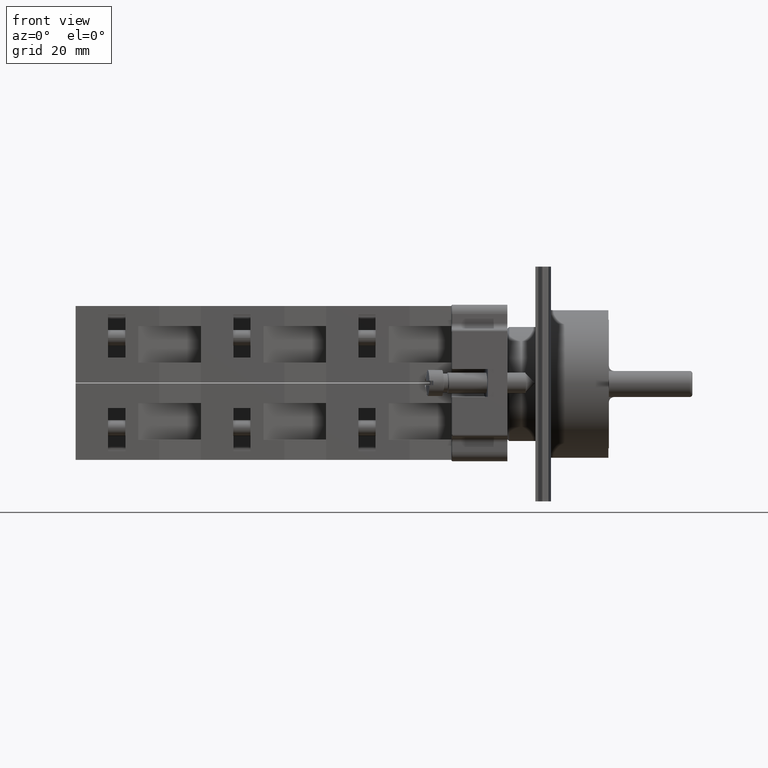
[diagram: clean part render]
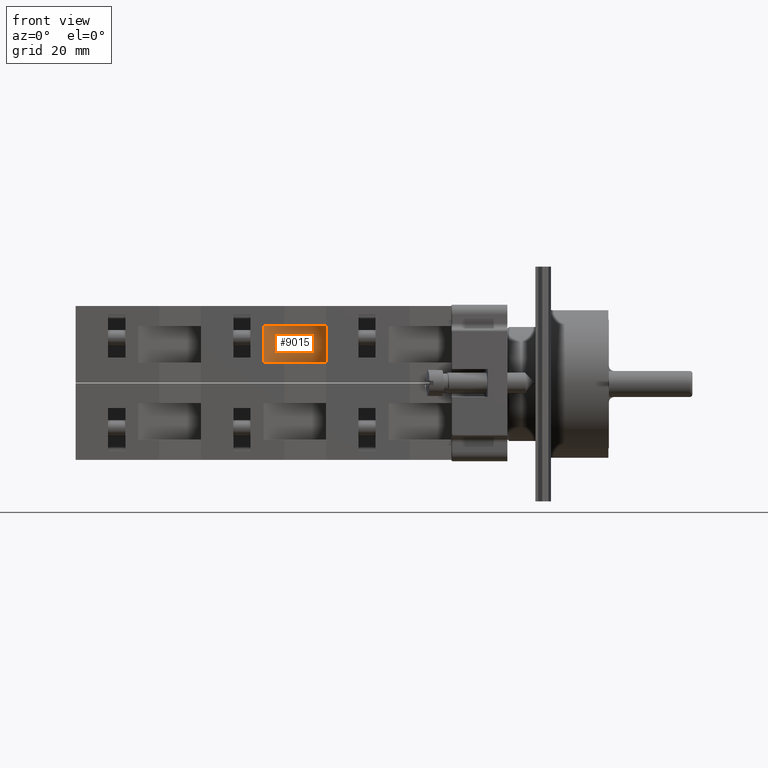
[diagram: same view with one face highlighted and labeled with its STEP entity id]
A machine part, front view. The second image highlights one B-rep face of the part: STEP entity #9015.
In plain terms, the highlighted face is a freeform B-spline surface patch.
Its self-contained STEP definition (entity closure, byte-faithful):
#8960=CARTESIAN_POINT('',(-44.936741828918457,11.797073323279610,10.850000000000000));
#8961=VERTEX_POINT('',#8960);
#8968=CARTESIAN_POINT('',(-35.936741828918450,-0.202926676720384,10.850000000000000));
#8969=VERTEX_POINT('',#8968);
#8970=CARTESIAN_POINT('',(-35.936741828918450,-0.202926676720384,10.850000000000000));
#8971=DIRECTION('',(-0.600000000000000,0.800000000000000,0.0));
#8972=VECTOR('',#8971,15.0);
#8973=LINE('',#8970,#8972);
#8974=EDGE_CURVE('',#8969,#8961,#8973,.T.);
#8985=CARTESIAN_POINT('',(-44.936741828918464,11.797073323279616,3.850000000000000));
#8986=CARTESIAN_POINT('',(-44.936741828918464,11.797073323279616,10.850000000000001));
#8987=CARTESIAN_POINT('',(-35.936741828918443,-0.202926676720384,3.850000000000000));
#8988=CARTESIAN_POINT('',(-35.936741828918450,-0.202926676720384,10.850000000000001));
#8989=B_SPLINE_SURFACE_WITH_KNOTS('',1,1,((#8985,#8987),(#8986,#8988)),.UNSPECIFIED.,.F.,.F.,.U.,(2,2),(2,2),(0.0,7.000000000000002),(0.0,15.000000000000012),.UNSPECIFIED.);
#8990=CARTESIAN_POINT('',(-44.936741828918457,11.797073323279610,3.850000000000001));
#8991=VERTEX_POINT('',#8990);
#8992=CARTESIAN_POINT('',(-35.936741828918450,-0.202926676720384,3.850000000000001));
#8993=VERTEX_POINT('',#8992);
#8994=CARTESIAN_POINT('',(-44.936741828918457,11.797073323279610,3.850000000000001));
#8995=DIRECTION('',(0.600000000000000,-0.800000000000000,0.0));
#8996=VECTOR('',#8995,15.0);
#8997=LINE('',#8994,#8996);
#8998=EDGE_CURVE('',#8991,#8993,#8997,.T.);
#8999=ORIENTED_EDGE('',*,*,#8998,.T.);
#9000=CARTESIAN_POINT('',(-35.936741828918450,-0.202926676720384,10.850000000000000));
#9001=DIRECTION('',(0.0,0.0,-1.0));
#9002=VECTOR('',#9001,6.999999999999999);
#9003=LINE('',#9000,#9002);
#9004=EDGE_CURVE('',#8969,#8993,#9003,.T.);
#9005=ORIENTED_EDGE('',*,*,#9004,.F.);
#9006=ORIENTED_EDGE('',*,*,#8974,.T.);
#9007=CARTESIAN_POINT('',(-44.936741828918457,11.797073323279610,3.850000000000001));
#9008=DIRECTION('',(0.0,0.0,1.0));
#9009=VECTOR('',#9008,6.999999999999999);
#9010=LINE('',#9007,#9009);
#9011=EDGE_CURVE('',#8991,#8961,#9010,.T.);
#9012=ORIENTED_EDGE('',*,*,#9011,.F.);
#9013=EDGE_LOOP('',(#8999,#9005,#9006,#9012));
#9014=FACE_OUTER_BOUND('',#9013,.T.);
#9015=ADVANCED_FACE('',(#9014),#8989,.F.);